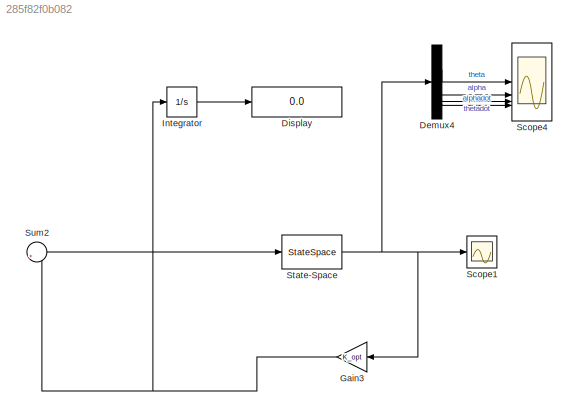
MODEL slx_285f82f0b082
KIND model
CONFIG AbsTol = auto
CONFIG EnableMultiTasking = off
CONFIG FixedStep = 0.01
CONFIG MaxStep = auto
CONFIG MinStep = auto
CONFIG RelTol = 1e-3
CONFIG SampleTimeConstraint = Unconstrained
CONFIG SolverName = ode14x
CONFIG StartTime = 0.0
CONFIG StopTime = 10.0
BLOCK [Demux] Demux4
BLOCK [Display] Display
  Decimation = 1
BLOCK [Gain] Gain3
  Gain = K_opt
  Multiplication = Matrix(K*u)
BLOCK [Integrator] Integrator
BLOCK [Scope] Scope1
  Floating = off
  NumInputPorts = 1
  ScopeSpecificationString = Simulink.scopes.TimeScopeBlockCfg('CurrentConfiguration', extmgr.ConfigurationSet(extmgr.Configuration('Core','General UI',true),extmgr.Configuration('Core','Source UI',true),extmgr.Configuration('Sources','WiredSimulink',true,'DataLoggingVariableName','ScopeData2'),extmgr.Configuration('Visuals','Time Domain',true,'SerializedDisplays',{struct('MinYLimReal','-1','MaxYLimReal','1','YLabelReal','','...<+1496ch>
BLOCK [Scope] Scope4
  Floating = off
  NumInputPorts = 4
  ScopeSpecificationString = Simulink.scopes.TimeScopeBlockCfg('CurrentConfiguration', extmgr.ConfigurationSet(extmgr.Configuration('Core','General UI',true),extmgr.Configuration('Core','Source UI',true),extmgr.Configuration('Sources','WiredSimulink',true,'DataLoggingVariableName','ScopeData1'),extmgr.Configuration('Visuals','Time Domain',true,'SerializedDisplays',{struct('MinYLimReal','-0.33939','MaxYLimReal','0.05768','YLab...<+1631ch>
BLOCK [StateSpace] State-Space
  A = A
  B = B
  C = C
  D = D
  InitialCondition = [1 * pi / 180; 1 * pi / 180; 0; 0]
BLOCK [Sum] Sum2
  Inputs = |+-
LINE Demux4:1 -> Scope4:1
LINE Demux4:2 -> Scope4:2
LINE Demux4:3 -> Scope4:3
LINE Demux4:4 -> Scope4:4
NET Gain3:1 -> Integrator:1, Sum2:2
LINE Integrator:1 -> Display:1
NET State-Space:1 -> Demux4:1, Gain3:1, Scope1:1
LINE Sum2:1 -> State-Space:1
note: NET lines group one-source signal fan-out (src -> all destinations, sorted); 1:1 wires keep LINE
